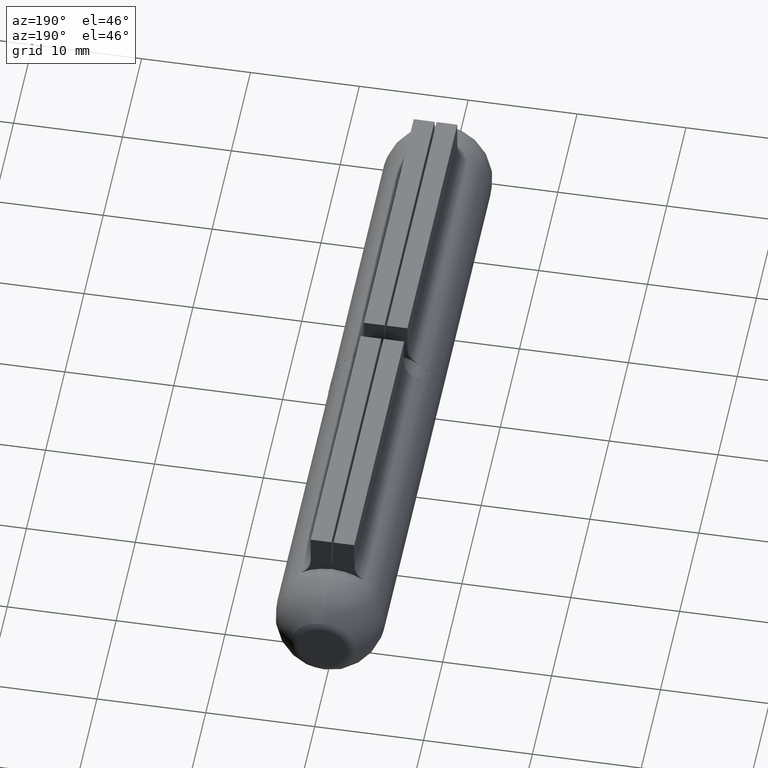
[diagram: clean part render]
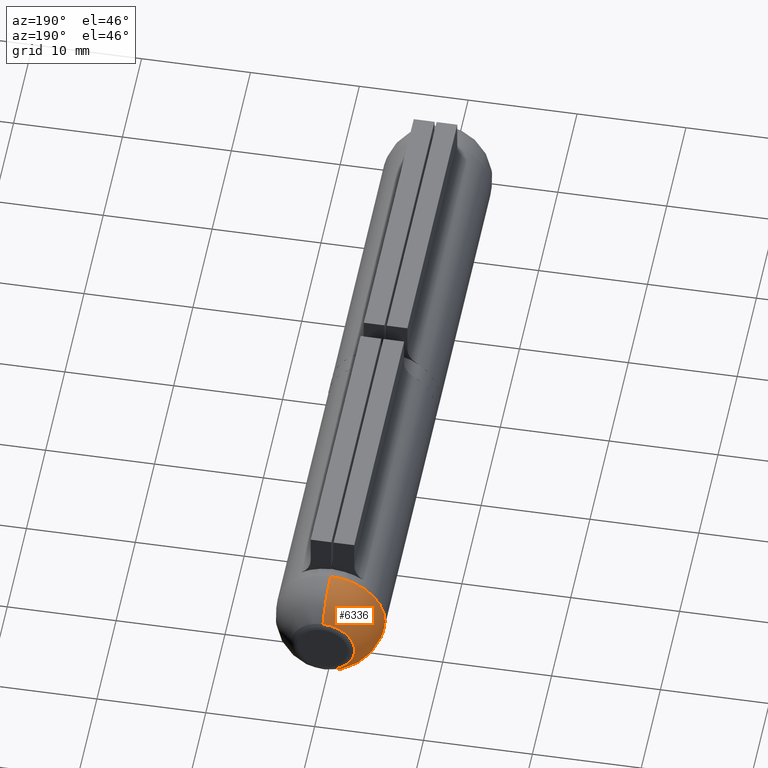
[diagram: same view with one face highlighted and labeled with its STEP entity id]
A machine part, auxiliary view. The second image highlights one B-rep face of the part: STEP entity #6336.
In plain terms, the highlighted spherical surface has radius 5 mm.
Its self-contained STEP definition (entity closure, byte-faithful):
#307 = SPHERICAL_SURFACE ( 'NONE', #9039, 5.000000000000000000 ) ;
#1861 = VERTEX_POINT ( 'NONE', #4758 ) ;
#1946 = ORIENTED_EDGE ( 'NONE', *, *, #13002, .T. ) ;
#3031 = CARTESIAN_POINT ( 'NONE',  ( 0.000000000000000000, 13.89999999999999325, 0.000000000000000000 ) ) ;
#3341 = AXIS2_PLACEMENT_3D ( 'NONE', #3031, #11716, #5171 ) ;
#4511 = DIRECTION ( 'NONE',  ( 0.000000000000000000, 0.000000000000000000, -1.000000000000000000 ) ) ;
#4638 = EDGE_CURVE ( 'NONE', #8507, #7060, #11941, .T. ) ;
#4758 = CARTESIAN_POINT ( 'NONE',  ( -4.846420888774524511E-16, 17.96249999999999147, 2.914805954090259554 ) ) ;
#5131 = EDGE_LOOP ( 'NONE', ( #8555, #1946, #5746, #13664 ) ) ;
#5171 = DIRECTION ( 'NONE',  ( -1.224646799147353207E-16, 0.000000000000000000, 1.000000000000000000 ) ) ;
#5546 = DIRECTION ( 'NONE',  ( -1.000000000000000000, 0.000000000000000000, 0.000000000000000000 ) ) ;
#5596 = CARTESIAN_POINT ( 'NONE',  ( 0.000000000000000000, 13.89999999999999325, 0.000000000000000000 ) ) ;
#5746 = ORIENTED_EDGE ( 'NONE', *, *, #13272, .T. ) ;
#5930 = DIRECTION ( 'NONE',  ( 0.000000000000000000, -1.000000000000000000, -1.224646799147364794E-16 ) ) ;
#6336 = ADVANCED_FACE ( 'NONE', ( #13576 ), #307, .T. ) ;
#6879 = AXIS2_PLACEMENT_3D ( 'NONE', #11266, #5930, #12320 ) ;
#7060 = VERTEX_POINT ( 'NONE', #10315 ) ;
#7138 = AXIS2_PLACEMENT_3D ( 'NONE', #10261, #11256, #8013 ) ;
#7787 = CARTESIAN_POINT ( 'NONE',  ( 0.000000000000000000, 13.89999999999999147, -4.999999999999999112 ) ) ;
#7952 = CIRCLE ( 'NONE', #6879, 2.914805954090259110 ) ;
#8013 = DIRECTION ( 'NONE',  ( 0.000000000000000000, 0.000000000000000000, -1.000000000000000000 ) ) ;
#8153 = CIRCLE ( 'NONE', #7138, 5.000000000000000000 ) ;
#8507 = VERTEX_POINT ( 'NONE', #7787 ) ;
#8555 = ORIENTED_EDGE ( 'NONE', *, *, #4638, .T. ) ;
#9039 = AXIS2_PLACEMENT_3D ( 'NONE', #5596, #5546, #4511 ) ;
#9071 = DIRECTION ( 'NONE',  ( 0.000000000000000000, 0.000000000000000000, 1.000000000000000000 ) ) ;
#10252 = VERTEX_POINT ( 'NONE', #12460 ) ;
#10261 = CARTESIAN_POINT ( 'NONE',  ( 0.000000000000000000, 13.89999999999999325, 0.000000000000000000 ) ) ;
#10315 = CARTESIAN_POINT ( 'NONE',  ( 6.123233995736761352E-16, 13.89999999999999147, 4.999999999999993783 ) ) ;
#10996 = EDGE_CURVE ( 'NONE', #8507, #10252, #8153, .T. ) ;
#11036 = AXIS2_PLACEMENT_3D ( 'NONE', #11161, #13394, #9071 ) ;
#11161 = CARTESIAN_POINT ( 'NONE',  ( 0.000000000000000000, 13.89999999999999147, -2.835057340026128698E-15 ) ) ;
#11256 = DIRECTION ( 'NONE',  ( 1.000000000000000000, 0.000000000000000000, 0.000000000000000000 ) ) ;
#11266 = CARTESIAN_POINT ( 'NONE',  ( 0.000000000000000000, 17.96249999999999147, 4.975127621536167656E-16 ) ) ;
#11716 = DIRECTION ( 'NONE',  ( -1.000000000000000000, 1.499759782661871840E-32, -1.224646799147353207E-16 ) ) ;
#11941 = CIRCLE ( 'NONE', #11036, 4.999999999999996447 ) ;
#12320 = DIRECTION ( 'NONE',  ( 0.000000000000000000, 0.000000000000000000, -1.000000000000000000 ) ) ;
#12460 = CARTESIAN_POINT ( 'NONE',  ( 0.000000000000000000, 17.96249999999999147, -2.914805954090258666 ) ) ;
#13002 = EDGE_CURVE ( 'NONE', #7060, #1861, #13237, .T. ) ;
#13237 = CIRCLE ( 'NONE', #3341, 5.000000000000000000 ) ;
#13272 = EDGE_CURVE ( 'NONE', #1861, #10252, #7952, .T. ) ;
#13394 = DIRECTION ( 'NONE',  ( -0.000000000000000000, 1.000000000000000000, 1.224646799147364794E-16 ) ) ;
#13576 = FACE_OUTER_BOUND ( 'NONE', #5131, .T. ) ;
#13664 = ORIENTED_EDGE ( 'NONE', *, *, #10996, .F. ) ;